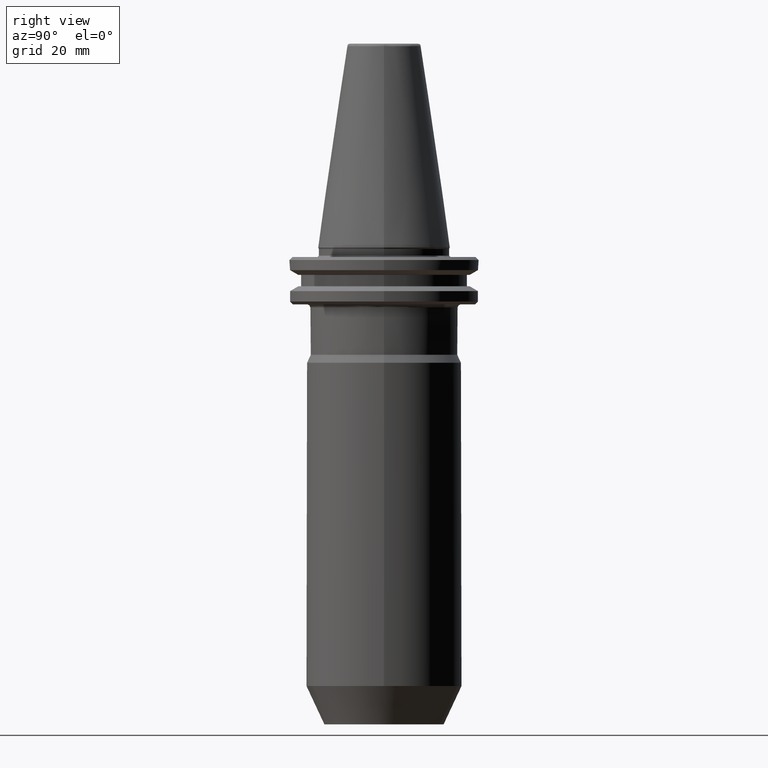
[diagram: clean part render]
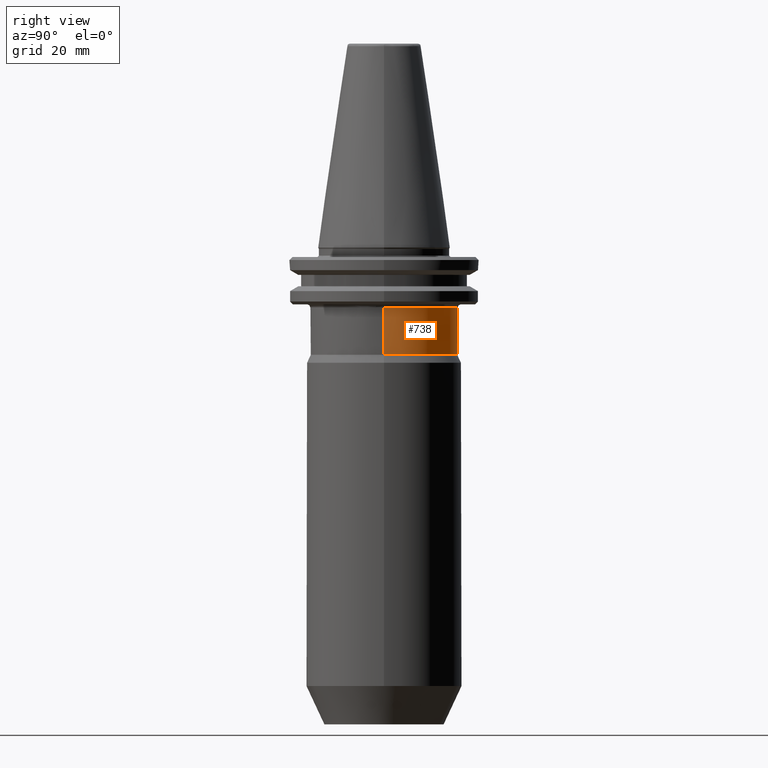
[diagram: same view with one face highlighted and labeled with its STEP entity id]
A machine part, right view. The second image highlights one B-rep face of the part: STEP entity #738.
In plain terms, the highlighted cylindrical surface (partial cylindrical patch) has radius 24.75 mm, axis along (0, 0, 1).
Its self-contained STEP definition (entity closure, byte-faithful):
#10 = AXIS2_PLACEMENT_3D ( 'NONE', #1179, #112, #916 ) ;
#12 = CARTESIAN_POINT ( 'NONE',  ( -24.75000000000000000, 3.031000827889699300E-015, -20.10000000000000900 ) ) ;
#16 = DIRECTION ( 'NONE',  ( 0.0000000000000000000, 0.0000000000000000000, 1.000000000000000000 ) ) ;
#25 = CARTESIAN_POINT ( 'NONE',  ( 0.0000000000000000000, 0.0000000000000000000, -35.99936634936307200 ) ) ;
#36 = VERTEX_POINT ( 'NONE', #1346 ) ;
#88 = CARTESIAN_POINT ( 'NONE',  ( 24.75000000000000000, 0.0000000000000000000, -20.10000000000000900 ) ) ;
#112 = DIRECTION ( 'NONE',  ( 0.0000000000000000000, 0.0000000000000000000, 1.000000000000000000 ) ) ;
#174 = DIRECTION ( 'NONE',  ( -1.000000000000000000, 0.0000000000000000000, 0.0000000000000000000 ) ) ;
#265 = CARTESIAN_POINT ( 'NONE',  ( 23.42562699267621100, 7.987646712267638400, -20.10000000000000900 ) ) ;
#290 = VECTOR ( 'NONE', #16, 1000.000000000000000 ) ;
#317 = ORIENTED_EDGE ( 'NONE', *, *, #1581, .T. ) ;
#326 = LINE ( 'NONE', #1573, #290 ) ;
#359 = CARTESIAN_POINT ( 'NONE',  ( -24.75000000000000000, 3.031000827889699300E-015, 82.95681253582424100 ) ) ;
#373 = VERTEX_POINT ( 'NONE', #12 ) ;
#381 = AXIS2_PLACEMENT_3D ( 'NONE', #1341, #537, #1460 ) ;
#536 = EDGE_CURVE ( 'NONE', #1626, #36, #1388, .T. ) ;
#537 = DIRECTION ( 'NONE',  ( 0.0000000000000000000, 0.0000000000000000000, -1.000000000000000000 ) ) ;
#546 = FACE_OUTER_BOUND ( 'NONE', #1565, .T. ) ;
#558 = VECTOR ( 'NONE', #1281, 1000.000000000000000 ) ;
#589 = ORIENTED_EDGE ( 'NONE', *, *, #536, .F. ) ;
#636 = VERTEX_POINT ( 'NONE', #88 ) ;
#695 = CIRCLE ( 'NONE', #381, 24.75000000000000000 ) ;
#733 = LINE ( 'NONE', #359, #558 ) ;
#738 = ADVANCED_FACE ( 'NONE', ( #546 ), #1186, .T. ) ;
#771 = DIRECTION ( 'NONE',  ( -0.0000000000000000000, -0.0000000000000000000, -1.000000000000000000 ) ) ;
#775 = CARTESIAN_POINT ( 'NONE',  ( -24.75000000000000000, 0.0000000000000000000, -35.99936634936307200 ) ) ;
#803 = VERTEX_POINT ( 'NONE', #265 ) ;
#845 = EDGE_CURVE ( 'NONE', #803, #636, #695, .T. ) ;
#885 = EDGE_CURVE ( 'NONE', #36, #636, #326, .T. ) ;
#916 = DIRECTION ( 'NONE',  ( 1.000000000000000000, 0.0000000000000000000, 0.0000000000000000000 ) ) ;
#963 = AXIS2_PLACEMENT_3D ( 'NONE', #1530, #771, #1637 ) ;
#973 = AXIS2_PLACEMENT_3D ( 'NONE', #25, #974, #174 ) ;
#974 = DIRECTION ( 'NONE',  ( 0.0000000000000000000, 0.0000000000000000000, -1.000000000000000000 ) ) ;
#979 = ORIENTED_EDGE ( 'NONE', *, *, #1546, .T. ) ;
#1057 = CIRCLE ( 'NONE', #963, 24.75000000000000000 ) ;
#1179 = CARTESIAN_POINT ( 'NONE',  ( 0.0000000000000000000, 0.0000000000000000000, 82.95681253582424100 ) ) ;
#1186 = CYLINDRICAL_SURFACE ( 'NONE', #10, 24.75000000000000000 ) ;
#1281 = DIRECTION ( 'NONE',  ( 0.0000000000000000000, 0.0000000000000000000, 1.000000000000000000 ) ) ;
#1300 = ORIENTED_EDGE ( 'NONE', *, *, #885, .F. ) ;
#1341 = CARTESIAN_POINT ( 'NONE',  ( 0.0000000000000000000, 0.0000000000000000000, -20.10000000000000900 ) ) ;
#1346 = CARTESIAN_POINT ( 'NONE',  ( 24.75000000000000000, 3.107541252836408700E-015, -35.99936634936307200 ) ) ;
#1388 = CIRCLE ( 'NONE', #973, 24.75000000000000000 ) ;
#1418 = ORIENTED_EDGE ( 'NONE', *, *, #845, .T. ) ;
#1460 = DIRECTION ( 'NONE',  ( -1.000000000000000000, 0.0000000000000000000, 0.0000000000000000000 ) ) ;
#1530 = CARTESIAN_POINT ( 'NONE',  ( 0.0000000000000000000, 0.0000000000000000000, -20.10000000000000900 ) ) ;
#1546 = EDGE_CURVE ( 'NONE', #1626, #373, #733, .T. ) ;
#1565 = EDGE_LOOP ( 'NONE', ( #589, #979, #317, #1418, #1300 ) ) ;
#1573 = CARTESIAN_POINT ( 'NONE',  ( 24.75000000000000000, 0.0000000000000000000, 82.95681253582424100 ) ) ;
#1581 = EDGE_CURVE ( 'NONE', #373, #803, #1057, .T. ) ;
#1626 = VERTEX_POINT ( 'NONE', #775 ) ;
#1637 = DIRECTION ( 'NONE',  ( 1.000000000000000000, 0.0000000000000000000, 0.0000000000000000000 ) ) ;